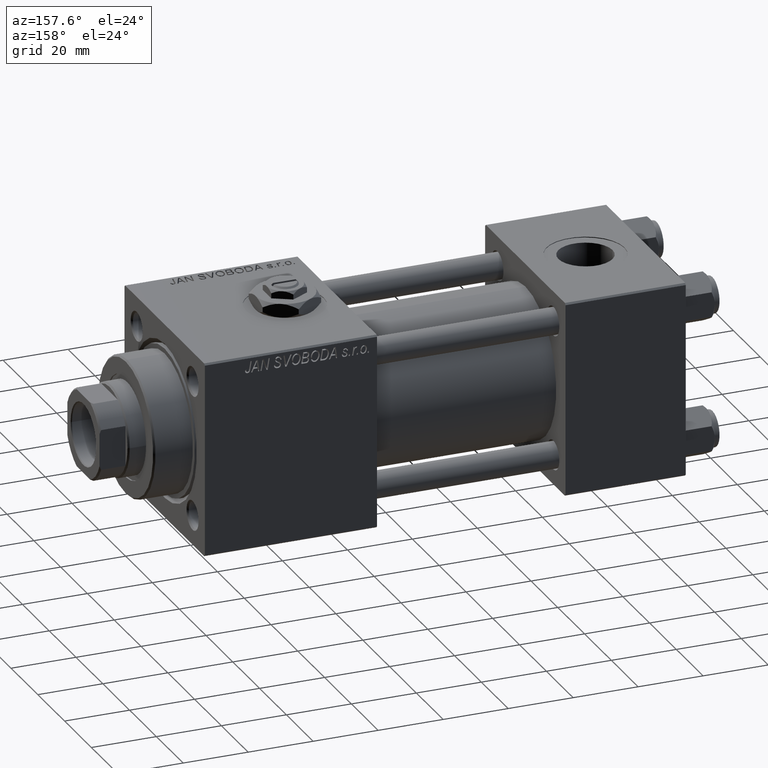
[diagram: clean part render]
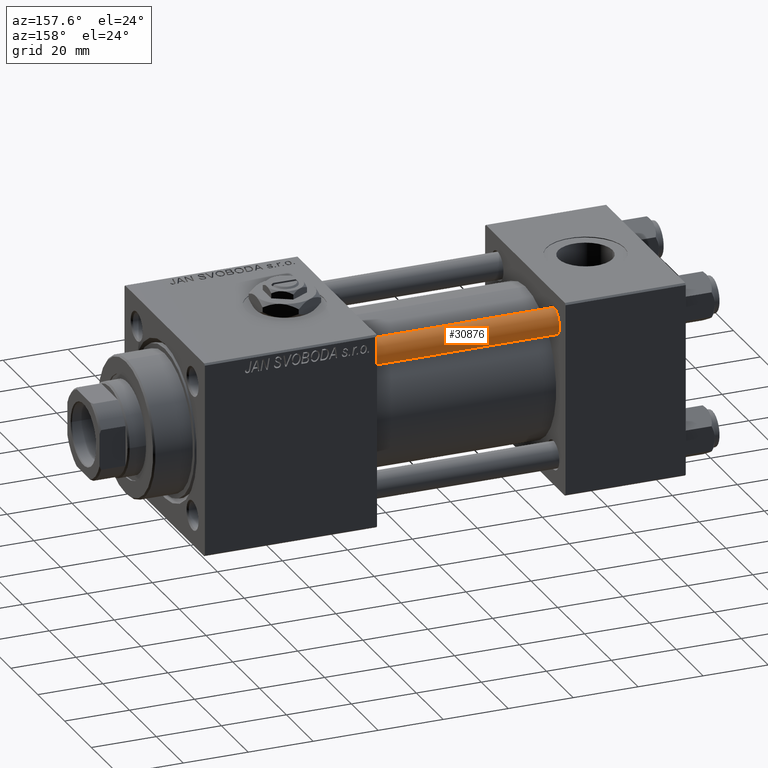
[diagram: same view with one face highlighted and labeled with its STEP entity id]
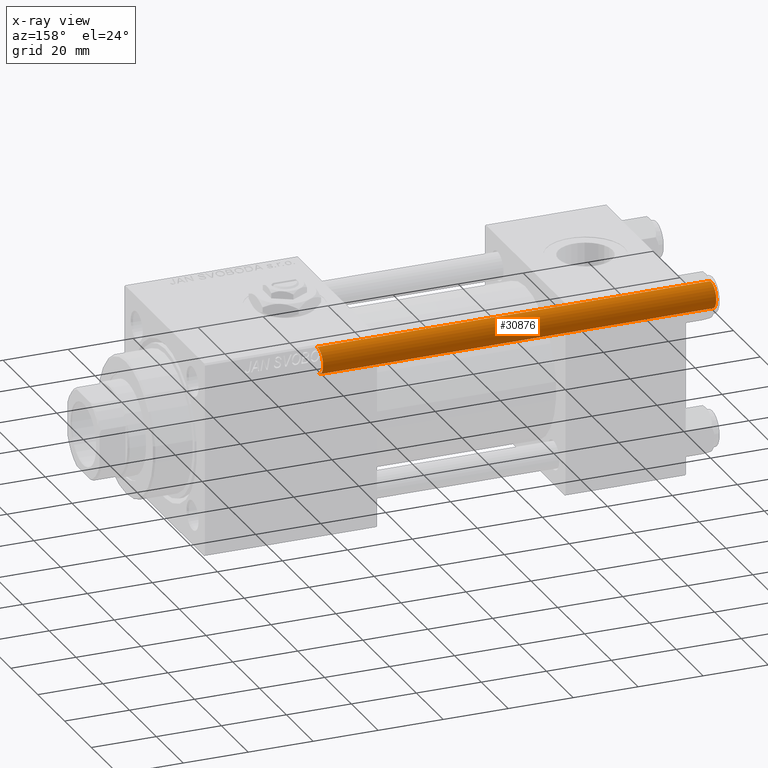
[diagram: x-ray of the same camera — body ghosted, the highlighted face saturated]
A machine part, auxiliary view. The second image highlights one B-rep face of the part: STEP entity #30876.
The next image is the same camera in x-ray: the body ghosted, the highlighted face saturated — about 0% of this face is hidden behind the body in this view.
In plain terms, the highlighted cylindrical surface (edge-blend (fillet) strip) has radius 4 mm, axis along (-1, 0, 0).
Its self-contained STEP definition (entity closure, byte-faithful):
#1220 = CARTESIAN_POINT ( 'NONE',  ( 0.000000000000000000, 0.000000000000000000, 122.0000000000000000 ) ) ;
#1374 = VECTOR ( 'NONE', #4641, 1000.000000000000000 ) ;
#1466 = FACE_OUTER_BOUND ( 'NONE', #13795, .T. ) ;
#1912 = VERTEX_POINT ( 'NONE', #25012 ) ;
#4641 = DIRECTION ( 'NONE',  ( -0.000000000000000000, -0.000000000000000000, -1.000000000000000000 ) ) ;
#6145 = EDGE_CURVE ( 'NONE', #26766, #25865, #35475, .T. ) ;
#8599 = LINE ( 'NONE', #15997, #1374 ) ;
#8695 = CARTESIAN_POINT ( 'NONE',  ( -4.000000000000000000, 0.000000000000000000, 121.5000000000000426 ) ) ;
#9485 = ORIENTED_EDGE ( 'NONE', *, *, #20921, .T. ) ;
#10223 = EDGE_CURVE ( 'NONE', #26766, #19740, #36677, .T. ) ;
#11979 = ORIENTED_EDGE ( 'NONE', *, *, #20467, .T. ) ;
#13347 = CYLINDRICAL_SURFACE ( 'NONE', #42969, 4.000000000000000000 ) ;
#13795 = EDGE_LOOP ( 'NONE', ( #29382, #9485, #11979, #27712 ) ) ;
#15997 = CARTESIAN_POINT ( 'NONE',  ( 4.000000000000000000, 4.898587196589411843E-16, 122.0000000000000000 ) ) ;
#17564 = DIRECTION ( 'NONE',  ( -1.000000000000000000, 0.000000000000000000, 0.000000000000000000 ) ) ;
#18026 = CARTESIAN_POINT ( 'NONE',  ( 0.000000000000000000, 0.000000000000000000, 121.5000000000000426 ) ) ;
#19740 = VERTEX_POINT ( 'NONE', #28978 ) ;
#19923 = CIRCLE ( 'NONE', #49507, 4.000000000000000000 ) ;
#20467 = EDGE_CURVE ( 'NONE', #1912, #19740, #19923, .T. ) ;
#20921 = EDGE_CURVE ( 'NONE', #25865, #1912, #8599, .T. ) ;
#22426 = DIRECTION ( 'NONE',  ( -0.000000000000000000, -0.000000000000000000, 1.000000000000000000 ) ) ;
#25012 = CARTESIAN_POINT ( 'NONE',  ( 4.000000000000000000, 4.898587196589411843E-16, 0.5000000000000559552 ) ) ;
#25539 = DIRECTION ( 'NONE',  ( -0.000000000000000000, -0.000000000000000000, -1.000000000000000000 ) ) ;
#25865 = VERTEX_POINT ( 'NONE', #31688 ) ;
#26001 = DIRECTION ( 'NONE',  ( -0.000000000000000000, -0.000000000000000000, -1.000000000000000000 ) ) ;
#26766 = VERTEX_POINT ( 'NONE', #8695 ) ;
#27712 = ORIENTED_EDGE ( 'NONE', *, *, #10223, .F. ) ;
#28978 = CARTESIAN_POINT ( 'NONE',  ( -4.000000000000000000, 0.000000000000000000, 0.5000000000000559552 ) ) ;
#29382 = ORIENTED_EDGE ( 'NONE', *, *, #6145, .T. ) ;
#30876 = ADVANCED_FACE ( 'NONE', ( #1466 ), #13347, .T. ) ;
#31688 = CARTESIAN_POINT ( 'NONE',  ( 4.000000000000000000, 4.898587196589411843E-16, 121.5000000000000426 ) ) ;
#34151 = DIRECTION ( 'NONE',  ( 1.000000000000000000, 0.000000000000000000, 0.000000000000000000 ) ) ;
#35366 = CARTESIAN_POINT ( 'NONE',  ( 0.000000000000000000, 0.000000000000000000, 0.5000000000000559552 ) ) ;
#35475 = CIRCLE ( 'NONE', #44785, 4.000000000000000000 ) ;
#36677 = LINE ( 'NONE', #37459, #43225 ) ;
#37459 = CARTESIAN_POINT ( 'NONE',  ( -4.000000000000000000, 0.000000000000000000, 122.0000000000000000 ) ) ;
#38103 = DIRECTION ( 'NONE',  ( 0.000000000000000000, 0.000000000000000000, -1.000000000000000000 ) ) ;
#42969 = AXIS2_PLACEMENT_3D ( 'NONE', #1220, #26001, #17564 ) ;
#43225 = VECTOR ( 'NONE', #25539, 1000.000000000000000 ) ;
#44785 = AXIS2_PLACEMENT_3D ( 'NONE', #18026, #38103, #34151 ) ;
#47027 = DIRECTION ( 'NONE',  ( 1.000000000000000000, 0.000000000000000000, 0.000000000000000000 ) ) ;
#49507 = AXIS2_PLACEMENT_3D ( 'NONE', #35366, #22426, #47027 ) ;